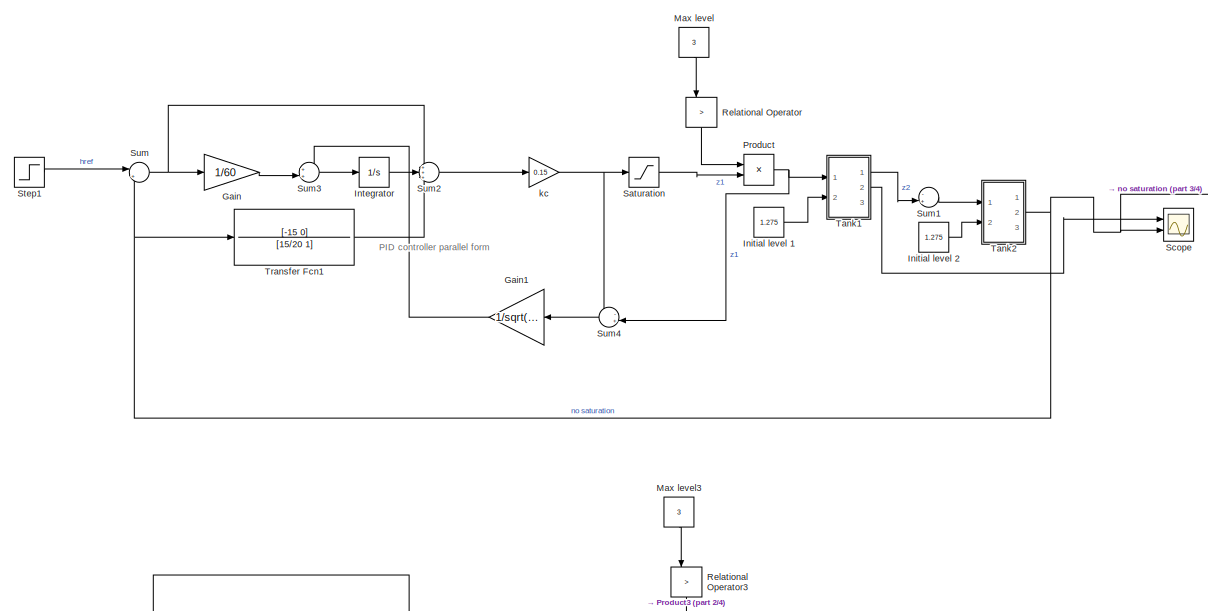
[diagram: root canvas - part 1/4, top center region]
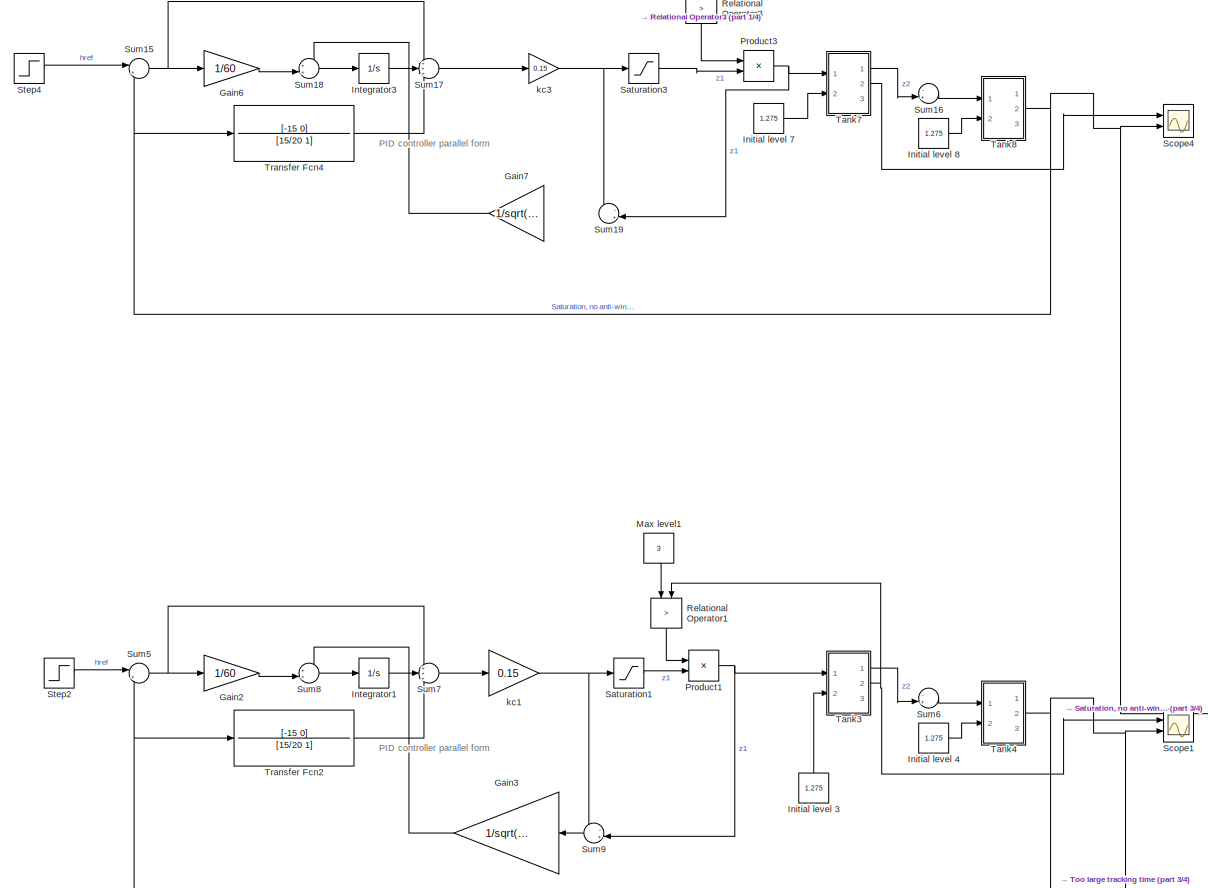
[diagram: root canvas - part 2/4, central region]
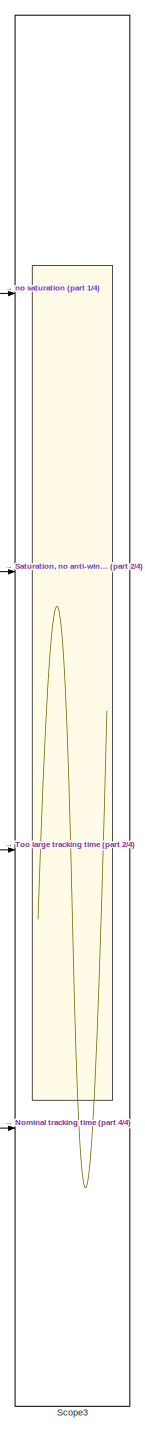
[diagram: root canvas - part 3/4, bottom right region]
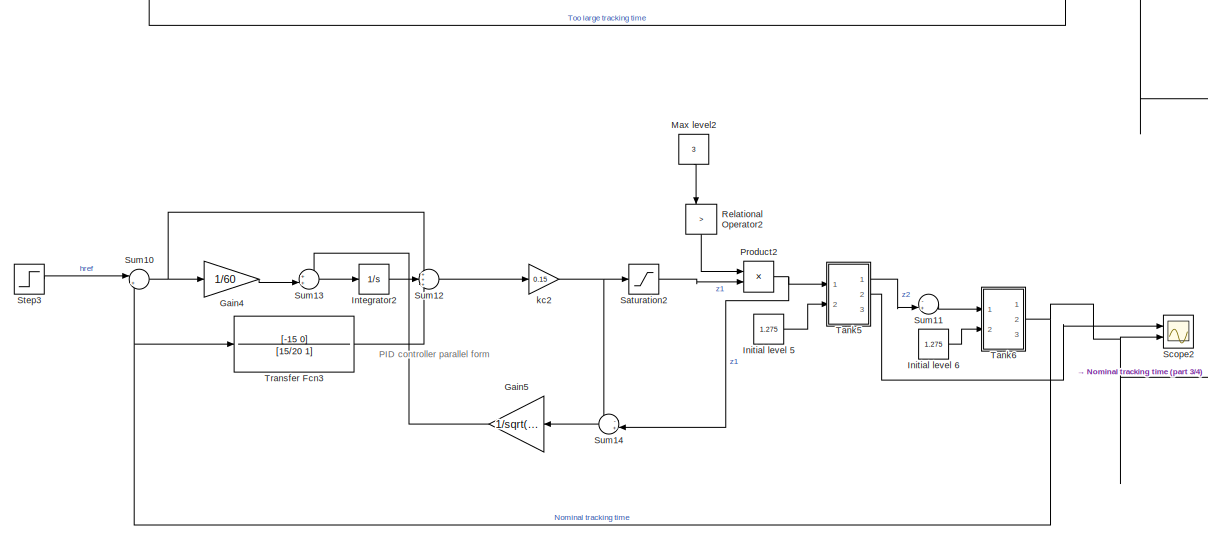
[diagram: root canvas - part 4/4, bottom center region]
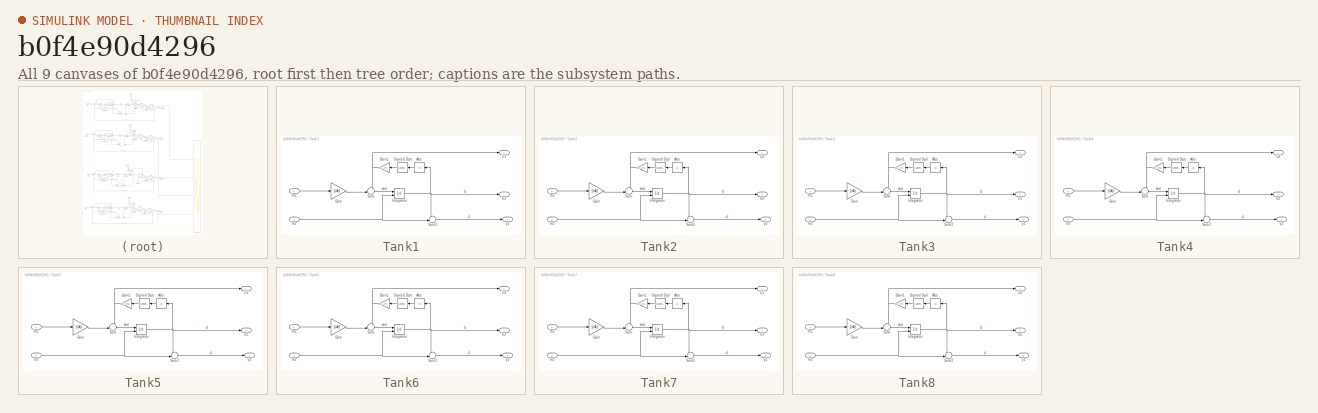
[diagram: thumbnail index - all 9 canvases of the model, root first then tree order]
MODEL slx_b0f4e90d4296
KIND model
CONFIG AbsTol = auto
CONFIG EnableMultiTasking = off
CONFIG FixedStep = 0.1
CONFIG MaxStep = auto
CONFIG MinStep = auto
CONFIG RelTol = 1e-3
CONFIG SampleTimeConstraint = Unconstrained
CONFIG Solver = FixedStepAuto
CONFIG SolverName = FixedStepAuto
CONFIG StartTime = 0.0
CONFIG StopTime = 2400
WORKSPACE source: MATLAB code (in-file)
WORKSPACE A1 = 1
WORKSPACE a1 = 0.1*0.1  (= 0.01)
WORKSPACE A2 = A1  (= 1)
WORKSPACE a2 = a1  (= 0.01)
WORKSPACE h10 = 1
WORKSPACE h20 = 1
BLOCK [Gain] Gain
  Gain = 1/60
  OutDataTypeStr = Inherit: Inherit via internal rule
  ParamDataTypeStr = Inherit: Inherit via internal rule
  SaturateOnIntegerOverflow = off
BLOCK [Gain] Gain1
  Gain = 1/sqrt(15*60)
  OutDataTypeStr = Inherit: Inherit via internal rule
  ParamDataTypeStr = Inherit: Inherit via internal rule
  SaturateOnIntegerOverflow = off
BLOCK [Gain] Gain2
  Gain = 1/60
  OutDataTypeStr = Inherit: Inherit via internal rule
  ParamDataTypeStr = Inherit: Inherit via internal rule
  SaturateOnIntegerOverflow = off
BLOCK [Gain] Gain3
  Gain = 1/sqrt(15*60)
  OutDataTypeStr = Inherit: Inherit via internal rule
  ParamDataTypeStr = Inherit: Inherit via internal rule
  SaturateOnIntegerOverflow = off
BLOCK [Gain] Gain4
  Gain = 1/60
  OutDataTypeStr = Inherit: Inherit via internal rule
  ParamDataTypeStr = Inherit: Inherit via internal rule
  SaturateOnIntegerOverflow = off
BLOCK [Gain] Gain5
  Gain = 1/sqrt(15*60)/0.15
  OutDataTypeStr = Inherit: Inherit via internal rule
  ParamDataTypeStr = Inherit: Inherit via internal rule
  SaturateOnIntegerOverflow = off
BLOCK [Gain] Gain6
  Gain = 1/60
  OutDataTypeStr = Inherit: Inherit via internal rule
  ParamDataTypeStr = Inherit: Inherit via internal rule
  SaturateOnIntegerOverflow = off
BLOCK [Gain] Gain7
  Gain = 1/sqrt(15*60)
  OutDataTypeStr = Inherit: Inherit via internal rule
  ParamDataTypeStr = Inherit: Inherit via internal rule
  SaturateOnIntegerOverflow = off
BLOCK [Constant] Initial level 1
  Value = 1.275
BLOCK [Constant] Initial level 2
  Value = 1.275
BLOCK [Constant] Initial level 3
  Value = 1.275
BLOCK [Constant] Initial level 4
  Value = 1.275
BLOCK [Constant] Initial level 5
  Value = 1.275
BLOCK [Constant] Initial level 6
  Value = 1.275
BLOCK [Constant] Initial level 7
  Value = 1.275
BLOCK [Constant] Initial level 8
  Value = 1.275
BLOCK [Integrator] Integrator
  Ports = [1, 1]
BLOCK [Integrator] Integrator1
  Ports = [1, 1]
BLOCK [Integrator] Integrator2
  Ports = [1, 1]
BLOCK [Integrator] Integrator3
  Ports = [1, 1]
BLOCK [Constant] Max level
  Value = 3
BLOCK [Constant] Max level1
  Value = 3
BLOCK [Constant] Max level2
  Value = 3
BLOCK [Constant] Max level3
  Value = 3
BLOCK [Product] Product
  InputSameDT = off
  OutDataTypeStr = Inherit: Inherit via internal rule
  Ports = [2, 1]
  RndMeth = Floor
  SaturateOnIntegerOverflow = off
BLOCK [Product] Product1
  InputSameDT = off
  OutDataTypeStr = Inherit: Inherit via internal rule
  Ports = [2, 1]
  RndMeth = Floor
  SaturateOnIntegerOverflow = off
BLOCK [Product] Product2
  InputSameDT = off
  OutDataTypeStr = Inherit: Inherit via internal rule
  Ports = [2, 1]
  RndMeth = Floor
  SaturateOnIntegerOverflow = off
BLOCK [Product] Product3
  InputSameDT = off
  OutDataTypeStr = Inherit: Inherit via internal rule
  Ports = [2, 1]
  RndMeth = Floor
  SaturateOnIntegerOverflow = off
BLOCK [RelationalOperator] Relational Operator
  InputSameDT = off
  Operator = >
  OutDataTypeStr = boolean
  Ports = [2, 1]
  RndMeth = Simplest
BLOCK [RelationalOperator] Relational Operator1
  InputSameDT = off
  Operator = >
  OutDataTypeStr = boolean
  Ports = [2, 1]
  RndMeth = Simplest
BLOCK [RelationalOperator] Relational Operator2
  InputSameDT = off
  Operator = >
  OutDataTypeStr = boolean
  Ports = [2, 1]
  RndMeth = Simplest
BLOCK [RelationalOperator] Relational Operator3
  InputSameDT = off
  Operator = >
  OutDataTypeStr = boolean
  Ports = [2, 1]
  RndMeth = Simplest
BLOCK [Saturate] Saturation
  InputPortMap = u0
  LowerLimit = 0
  Ports = [1, 1]
  UpperLimit = 10
BLOCK [Saturate] Saturation1
  InputPortMap = u0
  LowerLimit = 0
  Ports = [1, 1]
  UpperLimit = 0.07
BLOCK [Saturate] Saturation2
  InputPortMap = u0
  LowerLimit = 0
  Ports = [1, 1]
  UpperLimit = 0.07
BLOCK [Saturate] Saturation3
  InputPortMap = u0
  LowerLimit = 0
  Ports = [1, 1]
  UpperLimit = 0.07
BLOCK [Scope] Scope
  Floating = off
  NumInputPorts = 2
  Ports = [2]
  ScopeSpecificationString = Simulink.scopes.TimeScopeBlockCfg('CurrentConfiguration', extmgr.ConfigurationSet(extmgr.Configuration('Core','General UI',true),extmgr.Configuration('Core','Source UI',true),extmgr.Configuration('Sources','WiredSimulink',true),extmgr.Configuration('Visuals','Time Domain',true,'SerializedDisplays',{struct('MinYLimReal','0.46515','MaxYLimReal','2.67256','YLabelReal','','MinYLimMag','0.46515','MaxYL...<+1798ch>
BLOCK [Scope] Scope1
  Floating = off
  NumInputPorts = 2
  Ports = [2]
  ScopeSpecificationString = Simulink.scopes.TimeScopeBlockCfg('CurrentConfiguration', extmgr.ConfigurationSet(extmgr.Configuration('Core','General UI',true),extmgr.Configuration('Core','Source UI',true),extmgr.Configuration('Sources','WiredSimulink',true,'DataLoggingVariableName','ScopeData1'),extmgr.Configuration('Visuals','Time Domain',true,'SerializedDisplays',{struct('MinYLimReal','0.46515','MaxYLimReal','2.67256','YLabe...<+1780ch>
BLOCK [Scope] Scope2
  Floating = off
  NumInputPorts = 2
  Ports = [2]
  ScopeSpecificationString = Simulink.scopes.TimeScopeBlockCfg('CurrentConfiguration', extmgr.ConfigurationSet(extmgr.Configuration('Core','General UI',true),extmgr.Configuration('Core','Source UI',true),extmgr.Configuration('Sources','WiredSimulink',true,'DataLoggingVariableName','ScopeData2'),extmgr.Configuration('Visuals','Time Domain',true,'SerializedDisplays',{struct('MinYLimReal','0.46515','MaxYLimReal','2.67256','YLabe...<+1780ch>
BLOCK [Scope] Scope3
  Floating = off
  NumInputPorts = 4
  Ports = [4]
  ScopeSpecificationString = Simulink.scopes.TimeScopeBlockCfg('CurrentConfiguration', extmgr.ConfigurationSet(extmgr.Configuration('Core','General UI',true),extmgr.Configuration('Core','Source UI',true),extmgr.Configuration('Sources','WiredSimulink',true,'DataLoggingVariableName','ScopeData3'),extmgr.Configuration('Visuals','Time Domain',true,'SerializedDisplays',{struct('MinYLimReal','1.22398','MaxYLimReal','2.42071','YLabe...<+2015ch>
BLOCK [Scope] Scope4
  Floating = off
  NumInputPorts = 2
  Ports = [2]
  ScopeSpecificationString = Simulink.scopes.TimeScopeBlockCfg('CurrentConfiguration', extmgr.ConfigurationSet(extmgr.Configuration('Core','General UI',true),extmgr.Configuration('Core','Source UI',true),extmgr.Configuration('Sources','WiredSimulink',true,'DataLoggingVariableName','ScopeData4'),extmgr.Configuration('Visuals','Time Domain',true,'SerializedDisplays',{struct('MinYLimReal','0.46515','MaxYLimReal','2.67256','YLabe...<+1837ch>
BLOCK [Step] Step1
  After = 2
  Before = 1.275
  SampleTime = 0
  Time = 800
BLOCK [Step] Step2
  After = 2
  Before = 1.275
  SampleTime = 0
  Time = 800
BLOCK [Step] Step3
  After = 2
  Before = 1.275
  SampleTime = 0
  Time = 800
BLOCK [Step] Step4
  After = 2
  Before = 1.275
  SampleTime = 0
  Time = 800
BLOCK [Sum] Sum
  IconShape = round
  InputSameDT = off
  Inputs = |+-
  OutDataTypeStr = Inherit: Inherit via internal rule
  Ports = [2, 1]
  SaturateOnIntegerOverflow = off
BLOCK [Sum] Sum1
  IconShape = round
  InputSameDT = off
  Inputs = -+|
  OutDataTypeStr = Inherit: Inherit via internal rule
  Ports = [2, 1]
  SaturateOnIntegerOverflow = off
BLOCK [Sum] Sum10
  IconShape = round
  InputSameDT = off
  Inputs = |+-
  OutDataTypeStr = Inherit: Inherit via internal rule
  Ports = [2, 1]
  SaturateOnIntegerOverflow = off
BLOCK [Sum] Sum11
  IconShape = round
  InputSameDT = off
  Inputs = -+|
  OutDataTypeStr = Inherit: Inherit via internal rule
  Ports = [2, 1]
  SaturateOnIntegerOverflow = off
BLOCK [Sum] Sum12
  IconShape = round
  InputSameDT = off
  Inputs = +++
  OutDataTypeStr = Inherit: Inherit via internal rule
  Ports = [3, 1]
  SaturateOnIntegerOverflow = off
BLOCK [Sum] Sum13
  IconShape = round
  InputSameDT = off
  Inputs = ++|
  OutDataTypeStr = Inherit: Inherit via internal rule
  Ports = [2, 1]
  SaturateOnIntegerOverflow = off
BLOCK [Sum] Sum14
  IconShape = round
  InputSameDT = off
  Inputs = -+|
  OutDataTypeStr = Inherit: Inherit via internal rule
  Ports = [2, 1]
  SaturateOnIntegerOverflow = off
BLOCK [Sum] Sum15
  IconShape = round
  InputSameDT = off
  Inputs = |+-
  OutDataTypeStr = Inherit: Inherit via internal rule
  Ports = [2, 1]
  SaturateOnIntegerOverflow = off
BLOCK [Sum] Sum16
  IconShape = round
  InputSameDT = off
  Inputs = -+|
  OutDataTypeStr = Inherit: Inherit via internal rule
  Ports = [2, 1]
  SaturateOnIntegerOverflow = off
BLOCK [Sum] Sum17
  IconShape = round
  InputSameDT = off
  Inputs = +++
  OutDataTypeStr = Inherit: Inherit via internal rule
  Ports = [3, 1]
  SaturateOnIntegerOverflow = off
BLOCK [Sum] Sum18
  IconShape = round
  InputSameDT = off
  Inputs = ++|
  OutDataTypeStr = Inherit: Inherit via internal rule
  Ports = [2, 1]
  SaturateOnIntegerOverflow = off
BLOCK [Sum] Sum19
  IconShape = round
  InputSameDT = off
  Inputs = -+|
  OutDataTypeStr = Inherit: Inherit via internal rule
  Ports = [2, 1]
  SaturateOnIntegerOverflow = off
BLOCK [Sum] Sum2
  IconShape = round
  InputSameDT = off
  Inputs = +++
  OutDataTypeStr = Inherit: Inherit via internal rule
  Ports = [3, 1]
  SaturateOnIntegerOverflow = off
BLOCK [Sum] Sum3
  IconShape = round
  InputSameDT = off
  Inputs = ++|
  OutDataTypeStr = Inherit: Inherit via internal rule
  Ports = [2, 1]
  SaturateOnIntegerOverflow = off
BLOCK [Sum] Sum4
  IconShape = round
  InputSameDT = off
  Inputs = -+|
  OutDataTypeStr = Inherit: Inherit via internal rule
  Ports = [2, 1]
  SaturateOnIntegerOverflow = off
BLOCK [Sum] Sum5
  IconShape = round
  InputSameDT = off
  Inputs = |+-
  OutDataTypeStr = Inherit: Inherit via internal rule
  Ports = [2, 1]
  SaturateOnIntegerOverflow = off
BLOCK [Sum] Sum6
  IconShape = round
  InputSameDT = off
  Inputs = -+|
  OutDataTypeStr = Inherit: Inherit via internal rule
  Ports = [2, 1]
  SaturateOnIntegerOverflow = off
BLOCK [Sum] Sum7
  IconShape = round
  InputSameDT = off
  Inputs = +++
  OutDataTypeStr = Inherit: Inherit via internal rule
  Ports = [3, 1]
  SaturateOnIntegerOverflow = off
BLOCK [Sum] Sum8
  IconShape = round
  InputSameDT = off
  Inputs = ++|
  OutDataTypeStr = Inherit: Inherit via internal rule
  Ports = [2, 1]
  SaturateOnIntegerOverflow = off
BLOCK [Sum] Sum9
  IconShape = round
  InputSameDT = off
  Inputs = -+|
  OutDataTypeStr = Inherit: Inherit via internal rule
  Ports = [2, 1]
  SaturateOnIntegerOverflow = off
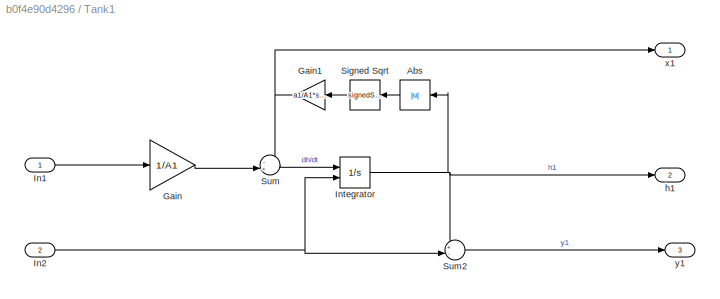
BLOCK [SubSystem] Tank1
  Ports = [2, 3]
  RequestExecContextInheritance = off
BLOCK [Abs] Tank1/Abs
  SaturateOnIntegerOverflow = off
BLOCK [Gain] Tank1/Gain
  Gain = 1/A1
  OutDataTypeStr = Inherit: Inherit via internal rule
  ParamDataTypeStr = Inherit: Inherit via internal rule
  SaturateOnIntegerOverflow = off
BLOCK [Gain] Tank1/Gain1
  Gain = a1/A1*sqrt(2*9.8)
  OutDataTypeStr = Inherit: Inherit via internal rule
  ParamDataTypeStr = Inherit: Inherit via internal rule
  SaturateOnIntegerOverflow = off
BLOCK [Inport] Tank1/In1
  IconDisplay = Port number
BLOCK [Inport] Tank1/In2
  IconDisplay = Port number
  Port = 2
BLOCK [Integrator] Tank1/Integrator
  InitialCondition = h10
  InitialConditionSource = external
  Ports = [2, 1]
BLOCK [Sqrt] Tank1/Signed Sqrt
  Operator = signedSqrt
BLOCK [Sum] Tank1/Sum
  IconShape = round
  InputSameDT = off
  Inputs = -+|
  OutDataTypeStr = Inherit: Inherit via internal rule
  Ports = [2, 1]
  SaturateOnIntegerOverflow = off
BLOCK [Sum] Tank1/Sum2
  IconShape = round
  InputSameDT = off
  Inputs = +-|
  OutDataTypeStr = Inherit: Inherit via internal rule
  Ports = [2, 1]
  SaturateOnIntegerOverflow = off
BLOCK [Outport] Tank1/h1
  IconDisplay = Port number
  Port = 2
BLOCK [Outport] Tank1/x1
  IconDisplay = Port number
BLOCK [Outport] Tank1/y1
  IconDisplay = Port number
  Port = 3
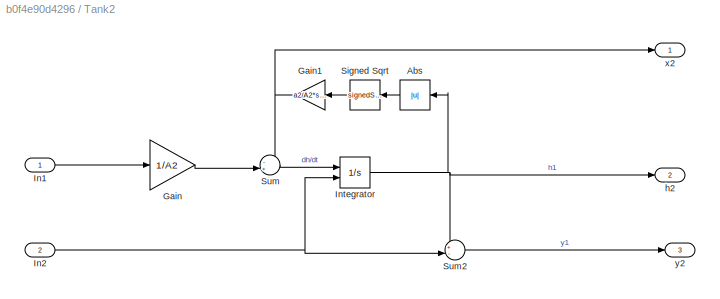
BLOCK [SubSystem] Tank2
  Ports = [2, 3]
  RequestExecContextInheritance = off
BLOCK [Abs] Tank2/Abs
  SaturateOnIntegerOverflow = off
BLOCK [Gain] Tank2/Gain
  Gain = 1/A2
  OutDataTypeStr = Inherit: Inherit via internal rule
  ParamDataTypeStr = Inherit: Inherit via internal rule
  SaturateOnIntegerOverflow = off
BLOCK [Gain] Tank2/Gain1
  Gain = a2/A2*sqrt(2*9.8)
  OutDataTypeStr = Inherit: Inherit via internal rule
  ParamDataTypeStr = Inherit: Inherit via internal rule
  SaturateOnIntegerOverflow = off
BLOCK [Inport] Tank2/In1
  IconDisplay = Port number
BLOCK [Inport] Tank2/In2
  IconDisplay = Port number
  Port = 2
BLOCK [Integrator] Tank2/Integrator
  InitialCondition = h10
  InitialConditionSource = external
  Ports = [2, 1]
BLOCK [Sqrt] Tank2/Signed Sqrt
  Operator = signedSqrt
BLOCK [Sum] Tank2/Sum
  IconShape = round
  InputSameDT = off
  Inputs = -+|
  OutDataTypeStr = Inherit: Inherit via internal rule
  Ports = [2, 1]
  SaturateOnIntegerOverflow = off
BLOCK [Sum] Tank2/Sum2
  IconShape = round
  InputSameDT = off
  Inputs = +-|
  OutDataTypeStr = Inherit: Inherit via internal rule
  Ports = [2, 1]
  SaturateOnIntegerOverflow = off
BLOCK [Outport] Tank2/h2
  IconDisplay = Port number
  Port = 2
BLOCK [Outport] Tank2/x2
  IconDisplay = Port number
BLOCK [Outport] Tank2/y2
  IconDisplay = Port number
  Port = 3
BLOCK [SubSystem] Tank3
  Ports = [2, 3]
  RequestExecContextInheritance = off
BLOCK [Abs] Tank3/Abs
  SaturateOnIntegerOverflow = off
BLOCK [Gain] Tank3/Gain
  Gain = 1/A1
  OutDataTypeStr = Inherit: Inherit via internal rule
  ParamDataTypeStr = Inherit: Inherit via internal rule
  SaturateOnIntegerOverflow = off
BLOCK [Gain] Tank3/Gain1
  Gain = a1/A1*sqrt(2*9.8)
  OutDataTypeStr = Inherit: Inherit via internal rule
  ParamDataTypeStr = Inherit: Inherit via internal rule
  SaturateOnIntegerOverflow = off
BLOCK [Inport] Tank3/In1
  IconDisplay = Port number
BLOCK [Inport] Tank3/In2
  IconDisplay = Port number
  Port = 2
BLOCK [Integrator] Tank3/Integrator
  InitialCondition = h10
  InitialConditionSource = external
  Ports = [2, 1]
BLOCK [Sqrt] Tank3/Signed Sqrt
  Operator = signedSqrt
BLOCK [Sum] Tank3/Sum
  IconShape = round
  InputSameDT = off
  Inputs = -+|
  OutDataTypeStr = Inherit: Inherit via internal rule
  Ports = [2, 1]
  SaturateOnIntegerOverflow = off
BLOCK [Sum] Tank3/Sum2
  IconShape = round
  InputSameDT = off
  Inputs = +-|
  OutDataTypeStr = Inherit: Inherit via internal rule
  Ports = [2, 1]
  SaturateOnIntegerOverflow = off
BLOCK [Outport] Tank3/h1
  IconDisplay = Port number
  Port = 2
BLOCK [Outport] Tank3/x1
  IconDisplay = Port number
BLOCK [Outport] Tank3/y1
  IconDisplay = Port number
  Port = 3
BLOCK [SubSystem] Tank4
  Ports = [2, 3]
  RequestExecContextInheritance = off
BLOCK [Abs] Tank4/Abs
  SaturateOnIntegerOverflow = off
BLOCK [Gain] Tank4/Gain
  Gain = 1/A2
  OutDataTypeStr = Inherit: Inherit via internal rule
  ParamDataTypeStr = Inherit: Inherit via internal rule
  SaturateOnIntegerOverflow = off
BLOCK [Gain] Tank4/Gain1
  Gain = a2/A2*sqrt(2*9.8)
  OutDataTypeStr = Inherit: Inherit via internal rule
  ParamDataTypeStr = Inherit: Inherit via internal rule
  SaturateOnIntegerOverflow = off
BLOCK [Inport] Tank4/In1
  IconDisplay = Port number
BLOCK [Inport] Tank4/In2
  IconDisplay = Port number
  Port = 2
BLOCK [Integrator] Tank4/Integrator
  InitialCondition = h10
  InitialConditionSource = external
  Ports = [2, 1]
BLOCK [Sqrt] Tank4/Signed Sqrt
  Operator = signedSqrt
BLOCK [Sum] Tank4/Sum
  IconShape = round
  InputSameDT = off
  Inputs = -+|
  OutDataTypeStr = Inherit: Inherit via internal rule
  Ports = [2, 1]
  SaturateOnIntegerOverflow = off
BLOCK [Sum] Tank4/Sum2
  IconShape = round
  InputSameDT = off
  Inputs = +-|
  OutDataTypeStr = Inherit: Inherit via internal rule
  Ports = [2, 1]
  SaturateOnIntegerOverflow = off
BLOCK [Outport] Tank4/h2
  IconDisplay = Port number
  Port = 2
BLOCK [Outport] Tank4/x2
  IconDisplay = Port number
BLOCK [Outport] Tank4/y2
  IconDisplay = Port number
  Port = 3
BLOCK [SubSystem] Tank5
  Ports = [2, 3]
  RequestExecContextInheritance = off
BLOCK [Abs] Tank5/Abs
  SaturateOnIntegerOverflow = off
BLOCK [Gain] Tank5/Gain
  Gain = 1/A1
  OutDataTypeStr = Inherit: Inherit via internal rule
  ParamDataTypeStr = Inherit: Inherit via internal rule
  SaturateOnIntegerOverflow = off
BLOCK [Gain] Tank5/Gain1
  Gain = a1/A1*sqrt(2*9.8)
  OutDataTypeStr = Inherit: Inherit via internal rule
  ParamDataTypeStr = Inherit: Inherit via internal rule
  SaturateOnIntegerOverflow = off
BLOCK [Inport] Tank5/In1
  IconDisplay = Port number
BLOCK [Inport] Tank5/In2
  IconDisplay = Port number
  Port = 2
BLOCK [Integrator] Tank5/Integrator
  InitialCondition = h10
  InitialConditionSource = external
  Ports = [2, 1]
BLOCK [Sqrt] Tank5/Signed Sqrt
  Operator = signedSqrt
BLOCK [Sum] Tank5/Sum
  IconShape = round
  InputSameDT = off
  Inputs = -+|
  OutDataTypeStr = Inherit: Inherit via internal rule
  Ports = [2, 1]
  SaturateOnIntegerOverflow = off
BLOCK [Sum] Tank5/Sum2
  IconShape = round
  InputSameDT = off
  Inputs = +-|
  OutDataTypeStr = Inherit: Inherit via internal rule
  Ports = [2, 1]
  SaturateOnIntegerOverflow = off
BLOCK [Outport] Tank5/h1
  IconDisplay = Port number
  Port = 2
BLOCK [Outport] Tank5/x1
  IconDisplay = Port number
BLOCK [Outport] Tank5/y1
  IconDisplay = Port number
  Port = 3
BLOCK [SubSystem] Tank6
  Ports = [2, 3]
  RequestExecContextInheritance = off
BLOCK [Abs] Tank6/Abs
  SaturateOnIntegerOverflow = off
BLOCK [Gain] Tank6/Gain
  Gain = 1/A2
  OutDataTypeStr = Inherit: Inherit via internal rule
  ParamDataTypeStr = Inherit: Inherit via internal rule
  SaturateOnIntegerOverflow = off
BLOCK [Gain] Tank6/Gain1
  Gain = a2/A2*sqrt(2*9.8)
  OutDataTypeStr = Inherit: Inherit via internal rule
  ParamDataTypeStr = Inherit: Inherit via internal rule
  SaturateOnIntegerOverflow = off
BLOCK [Inport] Tank6/In1
  IconDisplay = Port number
BLOCK [Inport] Tank6/In2
  IconDisplay = Port number
  Port = 2
BLOCK [Integrator] Tank6/Integrator
  InitialCondition = h10
  InitialConditionSource = external
  Ports = [2, 1]
BLOCK [Sqrt] Tank6/Signed Sqrt
  Operator = signedSqrt
BLOCK [Sum] Tank6/Sum
  IconShape = round
  InputSameDT = off
  Inputs = -+|
  OutDataTypeStr = Inherit: Inherit via internal rule
  Ports = [2, 1]
  SaturateOnIntegerOverflow = off
BLOCK [Sum] Tank6/Sum2
  IconShape = round
  InputSameDT = off
  Inputs = +-|
  OutDataTypeStr = Inherit: Inherit via internal rule
  Ports = [2, 1]
  SaturateOnIntegerOverflow = off
BLOCK [Outport] Tank6/h2
  IconDisplay = Port number
  Port = 2
BLOCK [Outport] Tank6/x2
  IconDisplay = Port number
BLOCK [Outport] Tank6/y2
  IconDisplay = Port number
  Port = 3
BLOCK [SubSystem] Tank7
  Ports = [2, 3]
  RequestExecContextInheritance = off
BLOCK [Abs] Tank7/Abs
  SaturateOnIntegerOverflow = off
BLOCK [Gain] Tank7/Gain
  Gain = 1/A1
  OutDataTypeStr = Inherit: Inherit via internal rule
  ParamDataTypeStr = Inherit: Inherit via internal rule
  SaturateOnIntegerOverflow = off
BLOCK [Gain] Tank7/Gain1
  Gain = a1/A1*sqrt(2*9.8)
  OutDataTypeStr = Inherit: Inherit via internal rule
  ParamDataTypeStr = Inherit: Inherit via internal rule
  SaturateOnIntegerOverflow = off
BLOCK [Inport] Tank7/In1
  IconDisplay = Port number
BLOCK [Inport] Tank7/In2
  IconDisplay = Port number
  Port = 2
BLOCK [Integrator] Tank7/Integrator
  InitialCondition = h10
  InitialConditionSource = external
  Ports = [2, 1]
BLOCK [Sqrt] Tank7/Signed Sqrt
  Operator = signedSqrt
BLOCK [Sum] Tank7/Sum
  IconShape = round
  InputSameDT = off
  Inputs = -+|
  OutDataTypeStr = Inherit: Inherit via internal rule
  Ports = [2, 1]
  SaturateOnIntegerOverflow = off
BLOCK [Sum] Tank7/Sum2
  IconShape = round
  InputSameDT = off
  Inputs = +-|
  OutDataTypeStr = Inherit: Inherit via internal rule
  Ports = [2, 1]
  SaturateOnIntegerOverflow = off
BLOCK [Outport] Tank7/h1
  IconDisplay = Port number
  Port = 2
BLOCK [Outport] Tank7/x1
  IconDisplay = Port number
BLOCK [Outport] Tank7/y1
  IconDisplay = Port number
  Port = 3
BLOCK [SubSystem] Tank8
  Ports = [2, 3]
  RequestExecContextInheritance = off
BLOCK [Abs] Tank8/Abs
  SaturateOnIntegerOverflow = off
BLOCK [Gain] Tank8/Gain
  Gain = 1/A2
  OutDataTypeStr = Inherit: Inherit via internal rule
  ParamDataTypeStr = Inherit: Inherit via internal rule
  SaturateOnIntegerOverflow = off
BLOCK [Gain] Tank8/Gain1
  Gain = a2/A2*sqrt(2*9.8)
  OutDataTypeStr = Inherit: Inherit via internal rule
  ParamDataTypeStr = Inherit: Inherit via internal rule
  SaturateOnIntegerOverflow = off
BLOCK [Inport] Tank8/In1
  IconDisplay = Port number
BLOCK [Inport] Tank8/In2
  IconDisplay = Port number
  Port = 2
BLOCK [Integrator] Tank8/Integrator
  InitialCondition = h10
  InitialConditionSource = external
  Ports = [2, 1]
BLOCK [Sqrt] Tank8/Signed Sqrt
  Operator = signedSqrt
BLOCK [Sum] Tank8/Sum
  IconShape = round
  InputSameDT = off
  Inputs = -+|
  OutDataTypeStr = Inherit: Inherit via internal rule
  Ports = [2, 1]
  SaturateOnIntegerOverflow = off
BLOCK [Sum] Tank8/Sum2
  IconShape = round
  InputSameDT = off
  Inputs = +-|
  OutDataTypeStr = Inherit: Inherit via internal rule
  Ports = [2, 1]
  SaturateOnIntegerOverflow = off
BLOCK [Outport] Tank8/h2
  IconDisplay = Port number
  Port = 2
BLOCK [Outport] Tank8/x2
  IconDisplay = Port number
BLOCK [Outport] Tank8/y2
  IconDisplay = Port number
  Port = 3
BLOCK [TransferFcn] Transfer Fcn1
  Denominator = [15/20 1]
  Numerator = [-15 0]
BLOCK [TransferFcn] Transfer Fcn2
  Denominator = [15/20 1]
  Numerator = [-15 0]
BLOCK [TransferFcn] Transfer Fcn3
  Denominator = [15/20 1]
  Numerator = [-15 0]
BLOCK [TransferFcn] Transfer Fcn4
  Denominator = [15/20 1]
  Numerator = [-15 0]
BLOCK [Gain] kc
  Gain = 0.15
  OutDataTypeStr = Inherit: Inherit via internal rule
  ParamDataTypeStr = Inherit: Inherit via internal rule
  SaturateOnIntegerOverflow = off
BLOCK [Gain] kc1
  Gain = 0.15
  OutDataTypeStr = Inherit: Inherit via internal rule
  ParamDataTypeStr = Inherit: Inherit via internal rule
  SaturateOnIntegerOverflow = off
BLOCK [Gain] kc2
  Gain = 0.15
  OutDataTypeStr = Inherit: Inherit via internal rule
  ParamDataTypeStr = Inherit: Inherit via internal rule
  SaturateOnIntegerOverflow = off
BLOCK [Gain] kc3
  Gain = 0.15
  OutDataTypeStr = Inherit: Inherit via internal rule
  ParamDataTypeStr = Inherit: Inherit via internal rule
  SaturateOnIntegerOverflow = off
ANNOTATION (root): PID controller parallel form
LINE Gain1:1 -> Sum3:1
LINE Gain2:1 -> Sum8:2
LINE Gain3:1 -> Sum8:1
LINE Gain4:1 -> Sum13:2
LINE Gain5:1 -> Sum13:1
LINE Gain6:1 -> Sum18:2
LINE Gain7:1 -> Sum18:1
LINE Gain:1 -> Sum3:2
LINE Initial level 1:1 -> Tank1:2
LINE Initial level 2:1 -> Tank2:2
LINE Initial level 3:1 -> Tank3:2
LINE Initial level 4:1 -> Tank4:2
LINE Initial level 5:1 -> Tank5:2
LINE Initial level 6:1 -> Tank6:2
LINE Initial level 7:1 -> Tank7:2
LINE Initial level 8:1 -> Tank8:2
LINE Integrator1:1 -> Sum7:2
LINE Integrator2:1 -> Sum12:2
LINE Integrator3:1 -> Sum17:2
LINE Integrator:1 -> Sum2:2
LINE Max level1:1 -> Relational Operator1:1
LINE Max level2:1 -> Relational Operator2:1
LINE Max level3:1 -> Relational Operator3:1
LINE Max level:1 -> Relational Operator:1
NET Product1:1 -> Sum9:2, Tank3:1
NET Product2:1 -> Sum14:2, Tank5:1
NET Product3:1 -> Sum19:2, Tank7:1
NET Product:1 -> Sum4:2, Tank1:1
LINE Relational Operator1:1 -> Product1:1
LINE Relational Operator2:1 -> Product2:1
LINE Relational Operator3:1 -> Product3:1
LINE Relational Operator:1 -> Product:1
LINE Saturation1:1 -> Product1:2
LINE Saturation2:1 -> Product2:2
LINE Saturation3:1 -> Product3:2
LINE Saturation:1 -> Product:2
LINE Step1:1 -> Sum:1
LINE Step2:1 -> Sum5:1
LINE Step3:1 -> Sum10:1
LINE Step4:1 -> Sum15:1
NET Sum10:1 -> Gain4:1, Sum12:1
LINE Sum11:1 -> Tank6:1
LINE Sum12:1 -> kc2:1
LINE Sum13:1 -> Integrator2:1
LINE Sum14:1 -> Gain5:1
NET Sum15:1 -> Gain6:1, Sum17:1
LINE Sum16:1 -> Tank8:1
LINE Sum17:1 -> kc3:1
LINE Sum18:1 -> Integrator3:1
LINE Sum1:1 -> Tank2:1
LINE Sum2:1 -> kc:1
LINE Sum3:1 -> Integrator:1
LINE Sum4:1 -> Gain1:1
NET Sum5:1 -> Gain2:1, Sum7:1
LINE Sum6:1 -> Tank4:1
LINE Sum7:1 -> kc1:1
LINE Sum8:1 -> Integrator1:1
LINE Sum9:1 -> Gain3:1
NET Sum:1 -> Gain:1, Sum2:1
LINE Tank1/Abs:1 -> Tank1/Signed Sqrt:1
NET Tank1/Gain1:1 -> Tank1/Sum:1, Tank1/x1:1
LINE Tank1/Gain:1 -> Tank1/Sum:2
LINE Tank1/In1:1 -> Tank1/Gain:1
NET Tank1/In2:1 -> Tank1/Integrator:2, Tank1/Sum2:2
NET Tank1/Integrator:1 -> Tank1/Abs:1, Tank1/Sum2:1, Tank1/h1:1
LINE Tank1/Signed Sqrt:1 -> Tank1/Gain1:1
LINE Tank1/Sum2:1 -> Tank1/y1:1
LINE Tank1/Sum:1 -> Tank1/Integrator:1
LINE Tank1:1 -> Sum1:2
LINE Tank1:2 -> Scope:1
LINE Tank2/Abs:1 -> Tank2/Signed Sqrt:1
NET Tank2/Gain1:1 -> Tank2/Sum:1, Tank2/x2:1
LINE Tank2/Gain:1 -> Tank2/Sum:2
LINE Tank2/In1:1 -> Tank2/Gain:1
NET Tank2/In2:1 -> Tank2/Integrator:2, Tank2/Sum2:2
NET Tank2/Integrator:1 -> Tank2/Abs:1, Tank2/Sum2:1, Tank2/h2:1
LINE Tank2/Signed Sqrt:1 -> Tank2/Gain1:1
LINE Tank2/Sum2:1 -> Tank2/y2:1
LINE Tank2/Sum:1 -> Tank2/Integrator:1
NET Tank2:2 -> Scope3:1, Scope:2, Sum:2, Transfer Fcn1:1
LINE Tank3/Abs:1 -> Tank3/Signed Sqrt:1
NET Tank3/Gain1:1 -> Tank3/Sum:1, Tank3/x1:1
LINE Tank3/Gain:1 -> Tank3/Sum:2
LINE Tank3/In1:1 -> Tank3/Gain:1
NET Tank3/In2:1 -> Tank3/Integrator:2, Tank3/Sum2:2
NET Tank3/Integrator:1 -> Tank3/Abs:1, Tank3/Sum2:1, Tank3/h1:1
LINE Tank3/Signed Sqrt:1 -> Tank3/Gain1:1
LINE Tank3/Sum2:1 -> Tank3/y1:1
LINE Tank3/Sum:1 -> Tank3/Integrator:1
LINE Tank3:1 -> Sum6:2
NET Tank3:2 -> Relational Operator1:2, Scope1:1
LINE Tank4/Abs:1 -> Tank4/Signed Sqrt:1
NET Tank4/Gain1:1 -> Tank4/Sum:1, Tank4/x2:1
LINE Tank4/Gain:1 -> Tank4/Sum:2
LINE Tank4/In1:1 -> Tank4/Gain:1
NET Tank4/In2:1 -> Tank4/Integrator:2, Tank4/Sum2:2
NET Tank4/Integrator:1 -> Tank4/Abs:1, Tank4/Sum2:1, Tank4/h2:1
LINE Tank4/Signed Sqrt:1 -> Tank4/Gain1:1
LINE Tank4/Sum2:1 -> Tank4/y2:1
LINE Tank4/Sum:1 -> Tank4/Integrator:1
NET Tank4:2 -> Scope1:2, Scope3:3, Sum5:2, Transfer Fcn2:1
LINE Tank5/Abs:1 -> Tank5/Signed Sqrt:1
NET Tank5/Gain1:1 -> Tank5/Sum:1, Tank5/x1:1
LINE Tank5/Gain:1 -> Tank5/Sum:2
LINE Tank5/In1:1 -> Tank5/Gain:1
NET Tank5/In2:1 -> Tank5/Integrator:2, Tank5/Sum2:2
NET Tank5/Integrator:1 -> Tank5/Abs:1, Tank5/Sum2:1, Tank5/h1:1
LINE Tank5/Signed Sqrt:1 -> Tank5/Gain1:1
LINE Tank5/Sum2:1 -> Tank5/y1:1
LINE Tank5/Sum:1 -> Tank5/Integrator:1
LINE Tank5:1 -> Sum11:2
LINE Tank5:2 -> Scope2:1
LINE Tank6/Abs:1 -> Tank6/Signed Sqrt:1
NET Tank6/Gain1:1 -> Tank6/Sum:1, Tank6/x2:1
LINE Tank6/Gain:1 -> Tank6/Sum:2
LINE Tank6/In1:1 -> Tank6/Gain:1
NET Tank6/In2:1 -> Tank6/Integrator:2, Tank6/Sum2:2
NET Tank6/Integrator:1 -> Tank6/Abs:1, Tank6/Sum2:1, Tank6/h2:1
LINE Tank6/Signed Sqrt:1 -> Tank6/Gain1:1
LINE Tank6/Sum2:1 -> Tank6/y2:1
LINE Tank6/Sum:1 -> Tank6/Integrator:1
NET Tank6:2 -> Scope2:2, Scope3:4, Sum10:2, Transfer Fcn3:1
LINE Tank7/Abs:1 -> Tank7/Signed Sqrt:1
NET Tank7/Gain1:1 -> Tank7/Sum:1, Tank7/x1:1
LINE Tank7/Gain:1 -> Tank7/Sum:2
LINE Tank7/In1:1 -> Tank7/Gain:1
NET Tank7/In2:1 -> Tank7/Integrator:2, Tank7/Sum2:2
NET Tank7/Integrator:1 -> Tank7/Abs:1, Tank7/Sum2:1, Tank7/h1:1
LINE Tank7/Signed Sqrt:1 -> Tank7/Gain1:1
LINE Tank7/Sum2:1 -> Tank7/y1:1
LINE Tank7/Sum:1 -> Tank7/Integrator:1
LINE Tank7:1 -> Sum16:2
LINE Tank7:2 -> Scope4:1
LINE Tank8/Abs:1 -> Tank8/Signed Sqrt:1
NET Tank8/Gain1:1 -> Tank8/Sum:1, Tank8/x2:1
LINE Tank8/Gain:1 -> Tank8/Sum:2
LINE Tank8/In1:1 -> Tank8/Gain:1
NET Tank8/In2:1 -> Tank8/Integrator:2, Tank8/Sum2:2
NET Tank8/Integrator:1 -> Tank8/Abs:1, Tank8/Sum2:1, Tank8/h2:1
LINE Tank8/Signed Sqrt:1 -> Tank8/Gain1:1
LINE Tank8/Sum2:1 -> Tank8/y2:1
LINE Tank8/Sum:1 -> Tank8/Integrator:1
NET Tank8:2 -> Scope3:2, Scope4:2, Sum15:2, Transfer Fcn4:1
LINE Transfer Fcn1:1 -> Sum2:3
LINE Transfer Fcn2:1 -> Sum7:3
LINE Transfer Fcn3:1 -> Sum12:3
LINE Transfer Fcn4:1 -> Sum17:3
NET kc1:1 -> Saturation1:1, Sum9:1
NET kc2:1 -> Saturation2:1, Sum14:1
NET kc3:1 -> Saturation3:1, Sum19:1
NET kc:1 -> Saturation:1, Sum4:1
note: NET lines group one-source signal fan-out (src -> all destinations, sorted); 1:1 wires keep LINE
